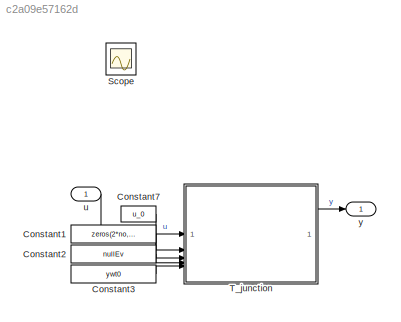
MODEL slx_c2a09e57162d
KIND model
CONFIG AbsTol = 1e-3
CONFIG EnableMultiTasking = off
CONFIG FixedStep = 0.001
CONFIG MaxStep = auto
CONFIG MinStep = auto
CONFIG RelTol = 1e-3
CONFIG SampleTimeConstraint = Unconstrained
CONFIG SolverName = VariableStepAuto
CONFIG StartTime = 0.0
CONFIG StopTime = 102.275
BLOCK [Constant] Constant1
  SampleTime = -1
  Value = zeros(2*no,1)
  VectorParams1D = off
BLOCK [Constant] Constant2
  OutDataTypeStr = Bus: event_bus
  SampleTime = -1
  Value = nullEv
  VectorParams1D = off
BLOCK [Constant] Constant3
  SampleTime = -1
  Value = ywt0
  VectorParams1D = off
BLOCK [Constant] Constant7
  SampleTime = -1
  Value = u_0
  VectorParams1D = off
BLOCK [Scope] Scope
  Floating = off
  IOType = viewer
  NumInputPorts = 1
  ScopeSpecificationString = Simulink.scopes.TimeScopeBlockCfg('CurrentConfiguration', extmgr.ConfigurationSet(extmgr.Configuration('Core','General UI',true),extmgr.Configuration('Core','Source UI',true),extmgr.Configuration('Sources','WiredSimulink',true),extmgr.Configuration('Visuals','Time Domain',true,'SerializedDisplays',{struct('MinYLimReal','-875.78394','MaxYLimReal','867.17428','YLabelReal','','MinYLimMag',' 0.00000',...<+1685ch>
BLOCK [SubSystem] T_junction
  ReferencedSubsystem = T_junction
BLOCK [Inport] u
  PortDimensions = 3
BLOCK [Outport] y
LINE Constant1:1 -> T_junction:3
LINE Constant2:1 -> T_junction:4
LINE Constant3:1 -> T_junction:5
LINE Constant7:1 -> T_junction:2
LINE T_junction:1 -> y:1
LINE u:1 -> T_junction:1
